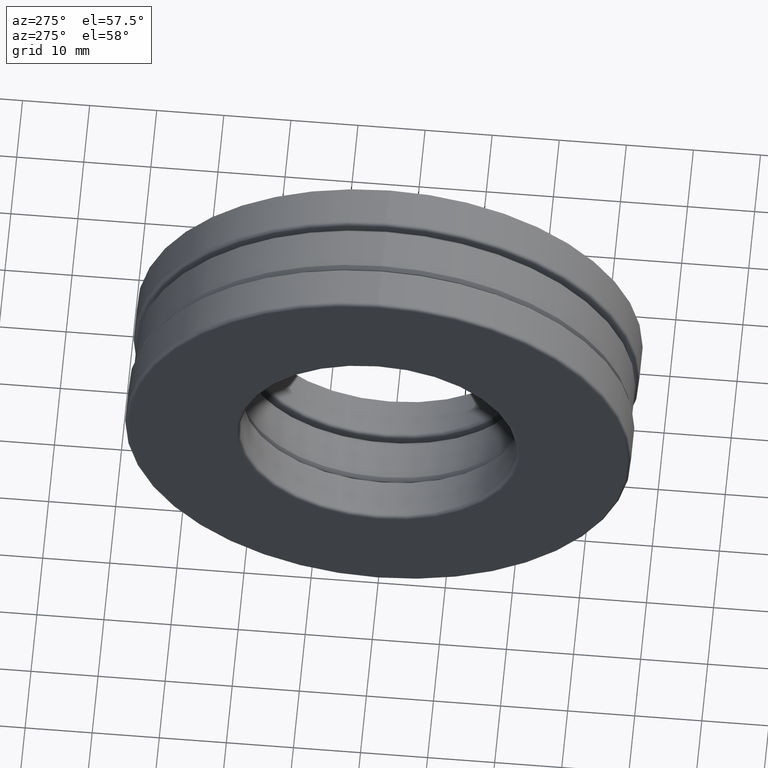
[diagram: clean part render]
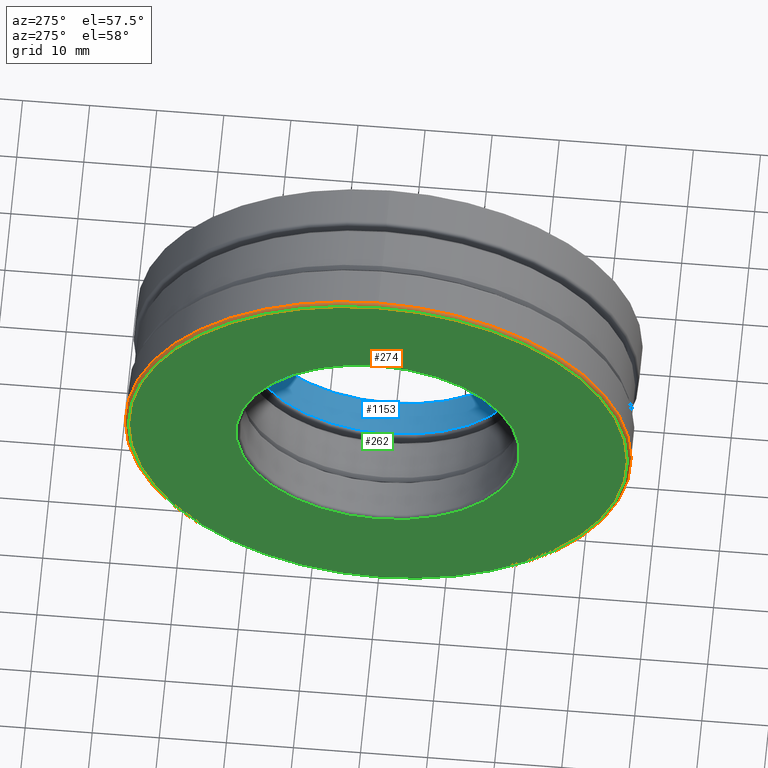
[diagram: same view with three faces highlighted in distinct colors, each labeled with its STEP entity id]
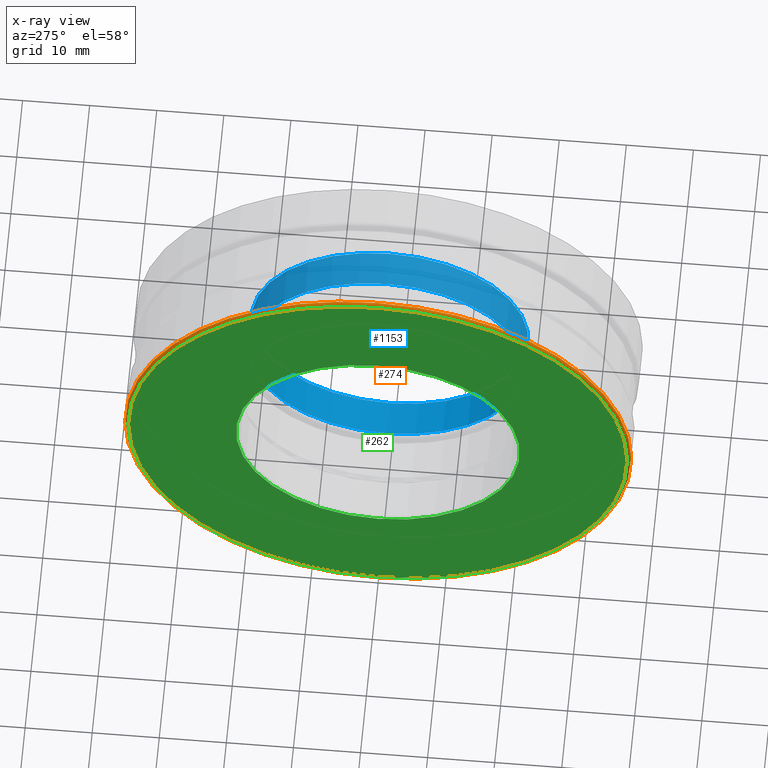
[diagram: x-ray of the same camera — body ghosted, the three highlighted faces saturated]
A machine part, auxiliary view with three faces highlighted in distinct colors.
The next image is the same camera in x-ray (body ghosted, the three faces saturated) — at least one of them is partly hidden behind the body in this view.
Their STEP definitions:

[orange] entity #274 — the highlighted toroidal blend (fillet) surface has major radius 37.1951 mm and minor (blend) radius 0.508 mm.
#87 = TOROIDAL_SURFACE ( 'NONE', #1150, 1.464375000000000200, 0.01999999999999985500 ) ;
#114 = VERTEX_POINT ( 'NONE', #723 ) ;
#121 = DIRECTION ( 'NONE',  ( -1.000000000000000000, -0.0000000000000000000, -0.0000000000000000000 ) ) ;
#128 = DIRECTION ( 'NONE',  ( 0.0000000000000000000, 0.0000000000000000000, 1.000000000000000000 ) ) ;
#179 = CARTESIAN_POINT ( 'NONE',  ( -0.4059999999999999700, 0.0000000000000000000, 0.0000000000000000000 ) ) ;
#243 = VERTEX_POINT ( 'NONE', #1132 ) ;
#249 = ORIENTED_EDGE ( 'NONE', *, *, #1034, .T. ) ;
#274 = ADVANCED_FACE ( 'NONE', ( #1099, #1260 ), #87, .T. ) ;
#348 = DIRECTION ( 'NONE',  ( 0.0000000000000000000, 0.0000000000000000000, 1.000000000000000000 ) ) ;
#412 = DIRECTION ( 'NONE',  ( -1.000000000000000000, -0.0000000000000000000, -0.0000000000000000000 ) ) ;
#517 = CIRCLE ( 'NONE', #712, 1.464375000000000200 ) ;
#687 = DIRECTION ( 'NONE',  ( -1.000000000000000000, -0.0000000000000000000, -0.0000000000000000000 ) ) ;
#712 = AXIS2_PLACEMENT_3D ( 'NONE', #179, #412, #1312 ) ;
#723 = CARTESIAN_POINT ( 'NONE',  ( -0.3860000000000000700, 0.0000000000000000000, 1.484375000000000000 ) ) ;
#744 = EDGE_LOOP ( 'NONE', ( #249 ) ) ;
#771 = ORIENTED_EDGE ( 'NONE', *, *, #816, .F. ) ;
#816 = EDGE_CURVE ( 'NONE', #243, #243, #517, .T. ) ;
#820 = CARTESIAN_POINT ( 'NONE',  ( -0.3860000000000000700, 0.0000000000000000000, 0.0000000000000000000 ) ) ;
#1013 = AXIS2_PLACEMENT_3D ( 'NONE', #1234, #687, #348 ) ;
#1034 = EDGE_CURVE ( 'NONE', #114, #114, #1250, .T. ) ;
#1040 = EDGE_LOOP ( 'NONE', ( #771 ) ) ;
#1099 = FACE_OUTER_BOUND ( 'NONE', #1040, .T. ) ;
#1132 = CARTESIAN_POINT ( 'NONE',  ( -0.4059999999999999700, 0.0000000000000000000, 1.464375000000000200 ) ) ;
#1150 = AXIS2_PLACEMENT_3D ( 'NONE', #820, #121, #128 ) ;
#1234 = CARTESIAN_POINT ( 'NONE',  ( -0.3860000000000000700, 0.0000000000000000000, 0.0000000000000000000 ) ) ;
#1250 = CIRCLE ( 'NONE', #1013, 1.484375000000000000 ) ;
#1260 = FACE_OUTER_BOUND ( 'NONE', #744, .T. ) ;
#1312 = DIRECTION ( 'NONE',  ( 0.0000000000000000000, 0.0000000000000000000, 1.000000000000000000 ) ) ;

[blue] entity #1153 — the highlighted cylindrical surface (bore or boss wall) has radius 20.6375 mm, axis along (-1, -0, -0).
#25 = CARTESIAN_POINT ( 'NONE',  ( 0.0000000000000000000, 0.0000000000000000000, 0.0000000000000000000 ) ) ;
#140 = CARTESIAN_POINT ( 'NONE',  ( 0.1759999999999999900, 0.0000000000000000000, 0.8125000000000000000 ) ) ;
#223 = CARTESIAN_POINT ( 'NONE',  ( 0.3860000000000000700, 0.0000000000000000000, 0.0000000000000000000 ) ) ;
#226 = CYLINDRICAL_SURFACE ( 'NONE', #380, 0.8125000000000001100 ) ;
#241 = VERTEX_POINT ( 'NONE', #140 ) ;
#268 = EDGE_LOOP ( 'NONE', ( #364 ) ) ;
#364 = ORIENTED_EDGE ( 'NONE', *, *, #1181, .F. ) ;
#380 = AXIS2_PLACEMENT_3D ( 'NONE', #25, #495, #941 ) ;
#453 = DIRECTION ( 'NONE',  ( 0.0000000000000000000, 0.0000000000000000000, 1.000000000000000000 ) ) ;
#472 = CARTESIAN_POINT ( 'NONE',  ( 0.1759999999999999900, 0.0000000000000000000, 0.0000000000000000000 ) ) ;
#488 = AXIS2_PLACEMENT_3D ( 'NONE', #472, #805, #1253 ) ;
#495 = DIRECTION ( 'NONE',  ( -1.000000000000000000, -0.0000000000000000000, -0.0000000000000000000 ) ) ;
#601 = CARTESIAN_POINT ( 'NONE',  ( 0.3860000000000000700, 0.0000000000000000000, 0.8125000000000001100 ) ) ;
#762 = CIRCLE ( 'NONE', #488, 0.8125000000000000000 ) ;
#805 = DIRECTION ( 'NONE',  ( -1.000000000000000000, -0.0000000000000000000, -0.0000000000000000000 ) ) ;
#893 = AXIS2_PLACEMENT_3D ( 'NONE', #223, #1468, #453 ) ;
#907 = FACE_OUTER_BOUND ( 'NONE', #1156, .T. ) ;
#941 = DIRECTION ( 'NONE',  ( 0.0000000000000000000, 0.0000000000000000000, 1.000000000000000000 ) ) ;
#967 = VERTEX_POINT ( 'NONE', #601 ) ;
#968 = CIRCLE ( 'NONE', #893, 0.8125000000000001100 ) ;
#1153 = ADVANCED_FACE ( 'NONE', ( #907, #1207 ), #226, .F. ) ;
#1156 = EDGE_LOOP ( 'NONE', ( #1304 ) ) ;
#1181 = EDGE_CURVE ( 'NONE', #967, #967, #968, .T. ) ;
#1207 = FACE_OUTER_BOUND ( 'NONE', #268, .T. ) ;
#1253 = DIRECTION ( 'NONE',  ( 0.0000000000000000000, 0.0000000000000000000, 1.000000000000000000 ) ) ;
#1304 = ORIENTED_EDGE ( 'NONE', *, *, #1350, .T. ) ;
#1350 = EDGE_CURVE ( 'NONE', #241, #241, #762, .T. ) ;
#1468 = DIRECTION ( 'NONE',  ( -1.000000000000000000, -0.0000000000000000000, -0.0000000000000000000 ) ) ;

[green] entity #262 — the highlighted planar face has unit normal (1, 0, 0).
#179 = CARTESIAN_POINT ( 'NONE',  ( -0.4059999999999999700, 0.0000000000000000000, 0.0000000000000000000 ) ) ;
#243 = VERTEX_POINT ( 'NONE', #1132 ) ;
#262 = ADVANCED_FACE ( 'NONE', ( #934, #270 ), #563, .F. ) ;
#270 = FACE_OUTER_BOUND ( 'NONE', #454, .T. ) ;
#296 = DIRECTION ( 'NONE',  ( 0.0000000000000000000, 0.0000000000000000000, 1.000000000000000000 ) ) ;
#412 = DIRECTION ( 'NONE',  ( -1.000000000000000000, -0.0000000000000000000, -0.0000000000000000000 ) ) ;
#454 = EDGE_LOOP ( 'NONE', ( #660 ) ) ;
#460 = CARTESIAN_POINT ( 'NONE',  ( -0.4059999999999999700, 4.388250387448827500E-017, 0.0000000000000000000 ) ) ;
#517 = CIRCLE ( 'NONE', #712, 1.464375000000000200 ) ;
#533 = CARTESIAN_POINT ( 'NONE',  ( -0.4060000000000000300, 0.0000000000000000000, 0.0000000000000000000 ) ) ;
#563 = PLANE ( 'NONE',  #642 ) ;
#642 = AXIS2_PLACEMENT_3D ( 'NONE', #460, #703, #1246 ) ;
#660 = ORIENTED_EDGE ( 'NONE', *, *, #816, .T. ) ;
#703 = DIRECTION ( 'NONE',  ( 1.000000000000000000, 0.0000000000000000000, 0.0000000000000000000 ) ) ;
#712 = AXIS2_PLACEMENT_3D ( 'NONE', #179, #412, #1312 ) ;
#774 = EDGE_CURVE ( 'NONE', #1125, #1125, #824, .T. ) ;
#816 = EDGE_CURVE ( 'NONE', #243, #243, #517, .T. ) ;
#824 = CIRCLE ( 'NONE', #1397, 0.8325000000000000200 ) ;
#934 = FACE_BOUND ( 'NONE', #1309, .T. ) ;
#1082 = DIRECTION ( 'NONE',  ( -1.000000000000000000, -0.0000000000000000000, -0.0000000000000000000 ) ) ;
#1125 = VERTEX_POINT ( 'NONE', #1273 ) ;
#1132 = CARTESIAN_POINT ( 'NONE',  ( -0.4059999999999999700, 0.0000000000000000000, 1.464375000000000200 ) ) ;
#1236 = ORIENTED_EDGE ( 'NONE', *, *, #774, .F. ) ;
#1246 = DIRECTION ( 'NONE',  ( 0.0000000000000000000, 0.0000000000000000000, -1.000000000000000000 ) ) ;
#1273 = CARTESIAN_POINT ( 'NONE',  ( -0.4060000000000000300, 0.0000000000000000000, 0.8325000000000000200 ) ) ;
#1309 = EDGE_LOOP ( 'NONE', ( #1236 ) ) ;
#1312 = DIRECTION ( 'NONE',  ( 0.0000000000000000000, 0.0000000000000000000, 1.000000000000000000 ) ) ;
#1397 = AXIS2_PLACEMENT_3D ( 'NONE', #533, #1082, #296 ) ;